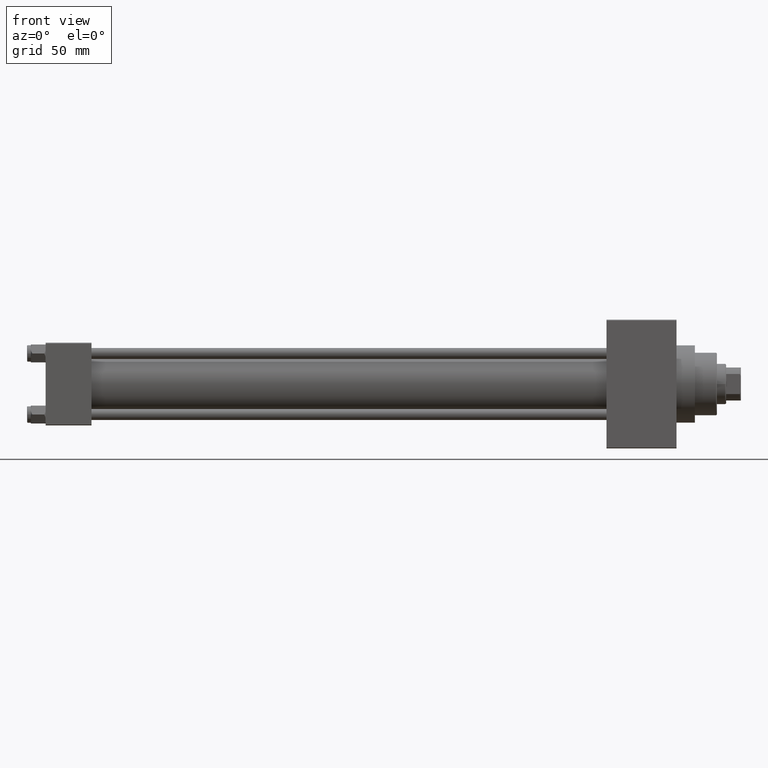
[diagram: clean part render]
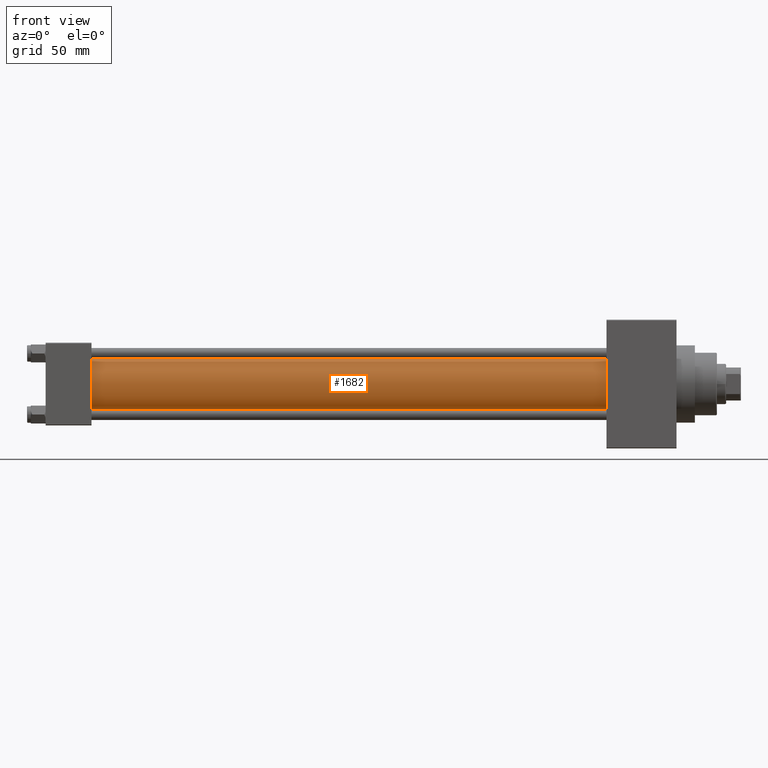
[diagram: same view with one face highlighted and labeled with its STEP entity id]
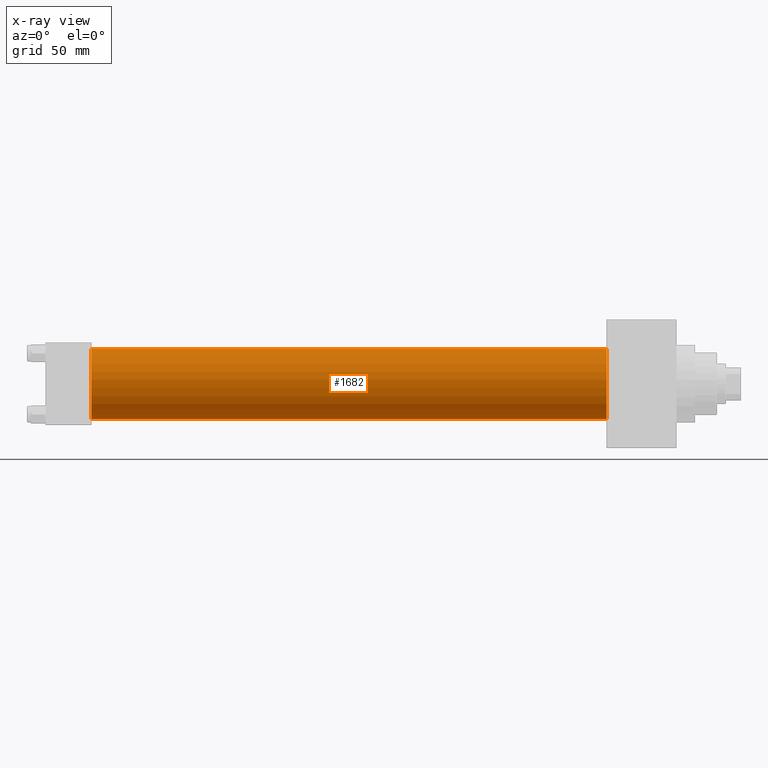
[diagram: x-ray of the same camera — body ghosted, the highlighted face saturated]
A machine part, front view. The second image highlights one B-rep face of the part: STEP entity #1682.
The next image is the same camera in x-ray: the body ghosted, the highlighted face saturated — about 0% of this face is hidden behind the body in this view.
In plain terms, the highlighted cylindrical surface (edge-blend (fillet) strip) has radius 19 mm, axis along (-1, -0, -0).
Its self-contained STEP definition (entity closure, byte-faithful):
#1682 = ADVANCED_FACE ( 'NONE', ( #17488 ), #6037, .T. ) ;
#2829 = CARTESIAN_POINT ( 'NONE',  ( 305.0000000000000568, -2.752562955852396712E-16, -19.00000000000000000 ) ) ;
#3079 = EDGE_CURVE ( 'NONE', #13396, #4528, #41448, .T. ) ;
#3884 = CARTESIAN_POINT ( 'NONE',  ( 305.0000000000000568, -2.602085213965210642E-15, 0.000000000000000000 ) ) ;
#4276 = AXIS2_PLACEMENT_3D ( 'NONE', #3884, #33214, #36939 ) ;
#4528 = VERTEX_POINT ( 'NONE', #32786 ) ;
#5195 = CARTESIAN_POINT ( 'NONE',  ( 305.0000000000000568, -2.752562955852396712E-16, -19.00000000000000000 ) ) ;
#5672 = VERTEX_POINT ( 'NONE', #6502 ) ;
#6037 = CYLINDRICAL_SURFACE ( 'NONE', #20133, 19.00000000000000000 ) ;
#6502 = CARTESIAN_POINT ( 'NONE',  ( 25.00000000000002132, -2.752562955852396712E-16, -19.00000000000000000 ) ) ;
#8180 = ORIENTED_EDGE ( 'NONE', *, *, #3079, .T. ) ;
#9102 = VERTEX_POINT ( 'NONE', #5195 ) ;
#10008 = DIRECTION ( 'NONE',  ( -1.000000000000000000, -0.000000000000000000, -0.000000000000000000 ) ) ;
#13396 = VERTEX_POINT ( 'NONE', #17280 ) ;
#13753 = DIRECTION ( 'NONE',  ( 0.000000000000000000, 0.000000000000000000, 1.000000000000000000 ) ) ;
#14676 = ORIENTED_EDGE ( 'NONE', *, *, #37096, .F. ) ;
#15302 = DIRECTION ( 'NONE',  ( 1.000000000000000000, -0.000000000000000000, 0.000000000000000000 ) ) ;
#17280 = CARTESIAN_POINT ( 'NONE',  ( 305.0000000000000568, -2.602085213965210642E-15, 19.00000000000000000 ) ) ;
#17488 = FACE_OUTER_BOUND ( 'NONE', #44830, .T. ) ;
#18849 = CARTESIAN_POINT ( 'NONE',  ( 305.0000000000000568, -2.602085213965210642E-15, 19.00000000000000000 ) ) ;
#19755 = ORIENTED_EDGE ( 'NONE', *, *, #36644, .F. ) ;
#20133 = AXIS2_PLACEMENT_3D ( 'NONE', #28910, #10008, #13753 ) ;
#20180 = VECTOR ( 'NONE', #36640, 1000.000000000000000 ) ;
#23309 = VECTOR ( 'NONE', #30271, 1000.000000000000000 ) ;
#25120 = AXIS2_PLACEMENT_3D ( 'NONE', #30714, #15302, #33959 ) ;
#25683 = CIRCLE ( 'NONE', #4276, 19.00000000000000000 ) ;
#28910 = CARTESIAN_POINT ( 'NONE',  ( 305.0000000000000568, -2.602085213965210642E-15, 0.000000000000000000 ) ) ;
#30271 = DIRECTION ( 'NONE',  ( -1.000000000000000000, -0.000000000000000000, -0.000000000000000000 ) ) ;
#30698 = CIRCLE ( 'NONE', #25120, 19.00000000000000000 ) ;
#30714 = CARTESIAN_POINT ( 'NONE',  ( 25.00000000000002132, -2.602085213965210642E-15, 0.000000000000000000 ) ) ;
#32786 = CARTESIAN_POINT ( 'NONE',  ( 25.00000000000002132, -2.602085213965210642E-15, 19.00000000000000000 ) ) ;
#33153 = LINE ( 'NONE', #2829, #20180 ) ;
#33214 = DIRECTION ( 'NONE',  ( 1.000000000000000000, 0.000000000000000000, 0.000000000000000000 ) ) ;
#33959 = DIRECTION ( 'NONE',  ( 0.000000000000000000, 0.000000000000000000, 1.000000000000000000 ) ) ;
#36640 = DIRECTION ( 'NONE',  ( -1.000000000000000000, -0.000000000000000000, -0.000000000000000000 ) ) ;
#36644 = EDGE_CURVE ( 'NONE', #9102, #5672, #33153, .T. ) ;
#36884 = ORIENTED_EDGE ( 'NONE', *, *, #42797, .T. ) ;
#36939 = DIRECTION ( 'NONE',  ( 0.000000000000000000, 0.000000000000000000, -1.000000000000000000 ) ) ;
#37096 = EDGE_CURVE ( 'NONE', #13396, #9102, #25683, .T. ) ;
#41448 = LINE ( 'NONE', #18849, #23309 ) ;
#42797 = EDGE_CURVE ( 'NONE', #4528, #5672, #30698, .T. ) ;
#44830 = EDGE_LOOP ( 'NONE', ( #19755, #14676, #8180, #36884 ) ) ;